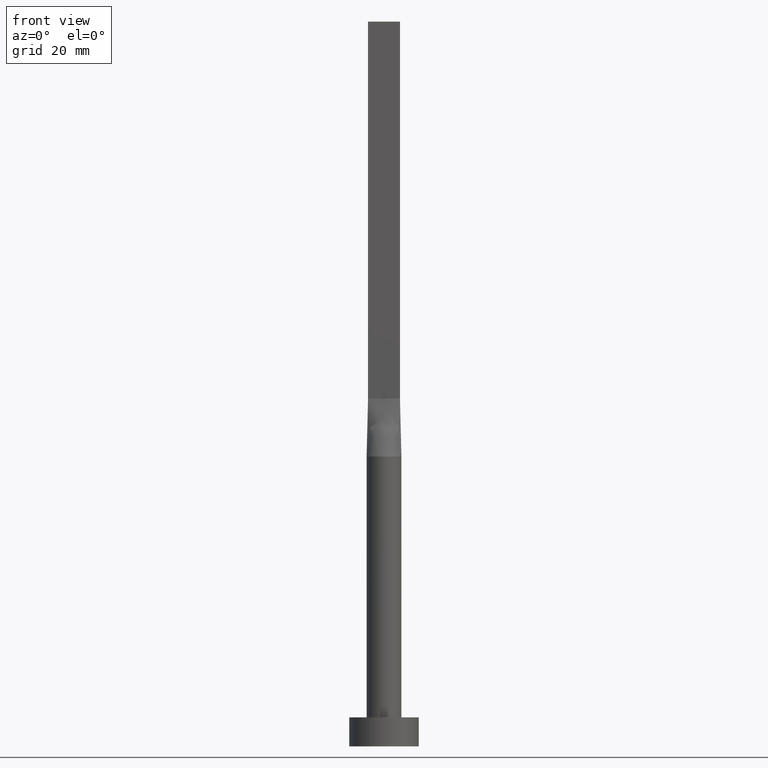
[diagram: clean part render]
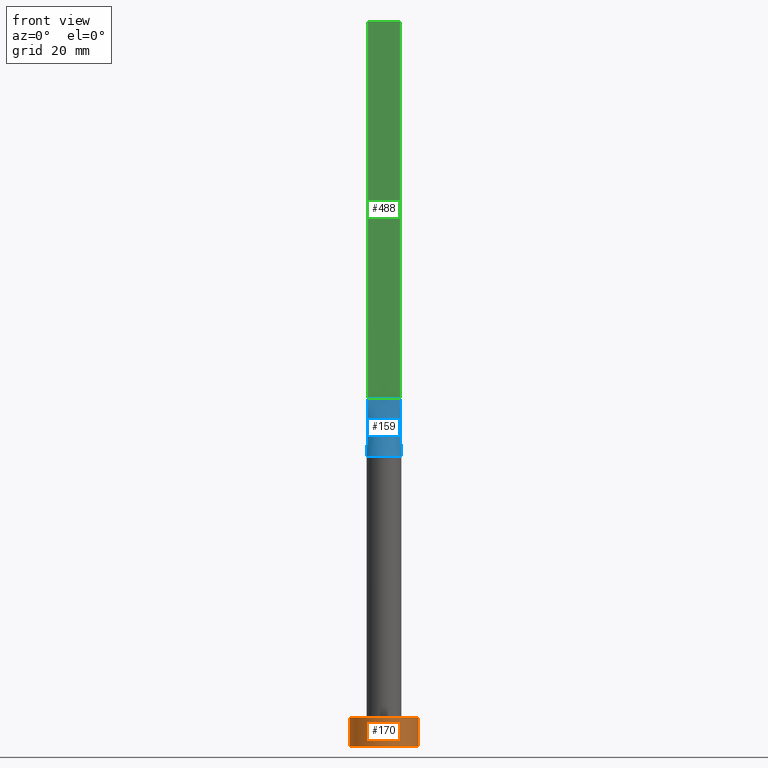
[diagram: same view with three faces highlighted in distinct colors, each labeled with its STEP entity id]
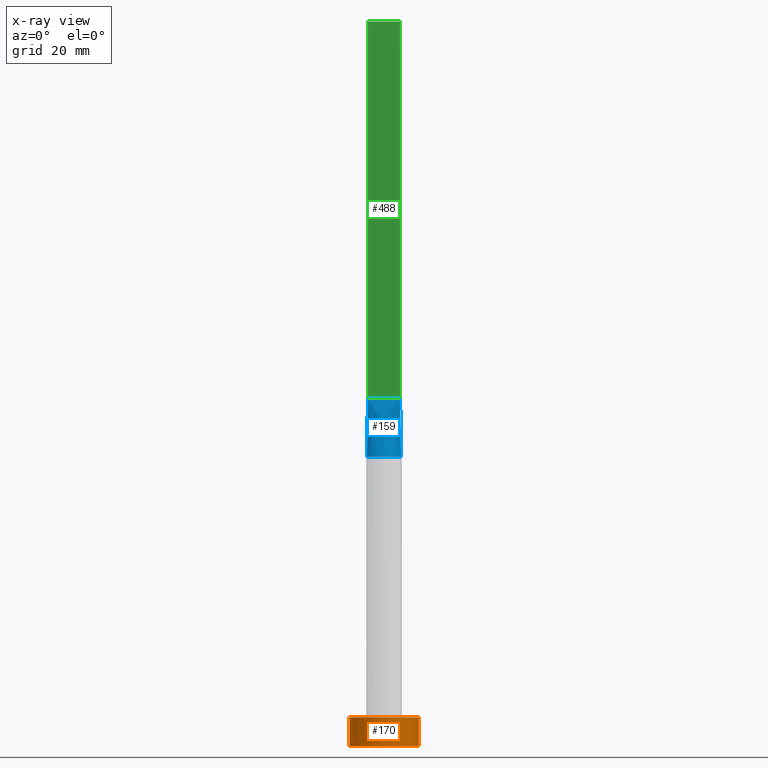
[diagram: x-ray of the same camera — body ghosted, the three highlighted faces saturated]
A machine part, front view with three faces highlighted in distinct colors.
The next image is the same camera in x-ray (body ghosted, the three faces saturated) — at least one of them is partly hidden behind the body in this view.
Their STEP definitions:

[orange] entity #170 — the highlighted cylindrical surface (edge-blend (fillet) strip) has radius 6 mm, axis along (-0, -0, -1).
#40 = FACE_OUTER_BOUND ( 'NONE', #399, .T. ) ;
#64 = VECTOR ( 'NONE', #215, 1000.000000000000000 ) ;
#75 = DIRECTION ( 'NONE',  ( -1.000000000000000000, 0.000000000000000000, 0.000000000000000000 ) ) ;
#98 = VERTEX_POINT ( 'NONE', #238 ) ;
#113 = AXIS2_PLACEMENT_3D ( 'NONE', #393, #482, #119 ) ;
#116 = CARTESIAN_POINT ( 'NONE',  ( 0.000000000000000000, 0.000000000000000000, 5.000000000000000000 ) ) ;
#119 = DIRECTION ( 'NONE',  ( 1.000000000000000000, 0.000000000000000000, 0.000000000000000000 ) ) ;
#126 = VERTEX_POINT ( 'NONE', #289 ) ;
#163 = CARTESIAN_POINT ( 'NONE',  ( 6.000000000000000888, 7.347880794884120722E-16, 5.000000000000000000 ) ) ;
#167 = CARTESIAN_POINT ( 'NONE',  ( 0.000000000000000000, 0.000000000000000000, 5.000000000000000000 ) ) ;
#169 = LINE ( 'NONE', #163, #64 ) ;
#170 = ADVANCED_FACE ( 'NONE', ( #40 ), #213, .T. ) ;
#172 = ORIENTED_EDGE ( 'NONE', *, *, #477, .F. ) ;
#178 = VECTOR ( 'NONE', #442, 1000.000000000000000 ) ;
#180 = ORIENTED_EDGE ( 'NONE', *, *, #573, .F. ) ;
#205 = VERTEX_POINT ( 'NONE', #285 ) ;
#213 = CYLINDRICAL_SURFACE ( 'NONE', #318, 6.000000000000000888 ) ;
#215 = DIRECTION ( 'NONE',  ( -0.000000000000000000, -0.000000000000000000, -1.000000000000000000 ) ) ;
#238 = CARTESIAN_POINT ( 'NONE',  ( 6.000000000000000888, 7.347880794884120722E-16, 5.000000000000000000 ) ) ;
#247 = DIRECTION ( 'NONE',  ( -0.000000000000000000, -0.000000000000000000, -1.000000000000000000 ) ) ;
#248 = DIRECTION ( 'NONE',  ( 0.000000000000000000, 0.000000000000000000, 1.000000000000000000 ) ) ;
#274 = AXIS2_PLACEMENT_3D ( 'NONE', #116, #248, #284 ) ;
#284 = DIRECTION ( 'NONE',  ( 1.000000000000000000, 0.000000000000000000, 0.000000000000000000 ) ) ;
#285 = CARTESIAN_POINT ( 'NONE',  ( -6.000000000000000888, 0.000000000000000000, 5.000000000000000000 ) ) ;
#289 = CARTESIAN_POINT ( 'NONE',  ( -6.000000000000000888, 0.000000000000000000, 0.000000000000000000 ) ) ;
#292 = CARTESIAN_POINT ( 'NONE',  ( -6.000000000000000888, 0.000000000000000000, 5.000000000000000000 ) ) ;
#318 = AXIS2_PLACEMENT_3D ( 'NONE', #167, #247, #75 ) ;
#350 = CIRCLE ( 'NONE', #274, 6.000000000000000888 ) ;
#390 = ORIENTED_EDGE ( 'NONE', *, *, #514, .T. ) ;
#393 = CARTESIAN_POINT ( 'NONE',  ( 0.000000000000000000, 0.000000000000000000, 0.000000000000000000 ) ) ;
#399 = EDGE_LOOP ( 'NONE', ( #180, #172, #521, #390 ) ) ;
#406 = CARTESIAN_POINT ( 'NONE',  ( 6.000000000000000888, 7.347880794884120722E-16, 0.000000000000000000 ) ) ;
#430 = VERTEX_POINT ( 'NONE', #406 ) ;
#442 = DIRECTION ( 'NONE',  ( -0.000000000000000000, -0.000000000000000000, -1.000000000000000000 ) ) ;
#477 = EDGE_CURVE ( 'NONE', #205, #98, #350, .T. ) ;
#481 = CIRCLE ( 'NONE', #113, 6.000000000000000888 ) ;
#482 = DIRECTION ( 'NONE',  ( 0.000000000000000000, 0.000000000000000000, 1.000000000000000000 ) ) ;
#514 = EDGE_CURVE ( 'NONE', #126, #430, #481, .T. ) ;
#521 = ORIENTED_EDGE ( 'NONE', *, *, #533, .T. ) ;
#528 = LINE ( 'NONE', #292, #178 ) ;
#533 = EDGE_CURVE ( 'NONE', #205, #126, #528, .T. ) ;
#573 = EDGE_CURVE ( 'NONE', #98, #430, #169, .T. ) ;

[blue] entity #159 — the highlighted face is a freeform B-spline surface patch.
#2 = CARTESIAN_POINT ( 'NONE',  ( -2.750000000000000000, -0.4999999999999994449, 60.00000000000000000 ) ) ;
#5 = EDGE_CURVE ( 'NONE', #502, #484, #500, .T. ) ;
#7 = CARTESIAN_POINT ( 'NONE',  ( 2.951896064709005785, -0.5367080392066733152, 49.99999999999999289 ) ) ;
#28 = CARTESIAN_POINT ( 'NONE',  ( -1.833333333333335702, -0.4999999999999995559, 60.00000000000000000 ) ) ;
#73 = DIRECTION ( 'NONE',  ( -0.02015674154923149941, -0.003664862099860237768, -0.9997901152521495582 ) ) ;
#79 = CARTESIAN_POINT ( 'NONE',  ( 2.951609730299722401, -0.5366563145999492246, 49.99999999999999289 ) ) ;
#83 = CARTESIAN_POINT ( 'NONE',  ( -2.291666666666667851, -0.4999999999999994449, 60.00000000000000000 ) ) ;
#84 = CARTESIAN_POINT ( 'NONE',  ( 2.907609730299723250, -0.7786563145999499946, 50.00000000000000000 ) ) ;
#89 = LINE ( 'NONE', #259, #453 ) ;
#95 = CARTESIAN_POINT ( 'NONE',  ( -2.850804865149861644, -0.5183281572999741682, 54.99999999999999289 ) ) ;
#115 = CARTESIAN_POINT ( 'NONE',  ( -0.9166666666666704044, -0.4999999999999995559, 60.00000000000000000 ) ) ;
#121 = CARTESIAN_POINT ( 'NONE',  ( 0.2291666666666624941, -0.4999999999999995559, 60.00000000000000000 ) ) ;
#122 = ORIENTED_EDGE ( 'NONE', *, *, #544, .F. ) ;
#128 = CARTESIAN_POINT ( 'NONE',  ( 2.750000000000000000, -0.4999999999999997780, 60.00000000000000000 ) ) ;
#136 = VERTEX_POINT ( 'NONE', #433 ) ;
#154 = CARTESIAN_POINT ( 'NONE',  ( 2.567367750129864401, -1.580669302822276023, 50.00000000000001421 ) ) ;
#157 = CARTESIAN_POINT ( 'NONE',  ( 0.000000000000000000, 0.000000000000000000, 49.99999999999999289 ) ) ;
#159 = ADVANCED_FACE ( 'NONE', ( #480 ), #472, .T. ) ;
#161 = CARTESIAN_POINT ( 'NONE',  ( -0.8331239790496242081, -2.909606296598777231, 49.99999999999998579 ) ) ;
#164 = CARTESIAN_POINT ( 'NONE',  ( 1.566158656300001395, -2.589797565249319256, 49.99999999999998579 ) ) ;
#173 = CARTESIAN_POINT ( 'NONE',  ( -2.750000000000000000, -0.4999999999999994449, 60.00000000000000000 ) ) ;
#201 = CARTESIAN_POINT ( 'NONE',  ( -1.145833333333336812, -0.4999999999999995559, 60.00000000000000000 ) ) ;
#203 = CARTESIAN_POINT ( 'NONE',  ( 1.833333333333330817, -0.4999999999999997780, 60.00000000000000000 ) ) ;
#208 = CARTESIAN_POINT ( 'NONE',  ( 1.882426928433513114, -2.362790634184936511, 50.00000000000000000 ) ) ;
#211 = CARTESIAN_POINT ( 'NONE',  ( -2.750000000000000000, -0.4999999999999994449, 60.00000000000000000 ) ) ;
#224 = ORIENTED_EDGE ( 'NONE', *, *, #427, .T. ) ;
#229 = VERTEX_POINT ( 'NONE', #7 ) ;
#233 = DIRECTION ( 'NONE',  ( 0.000000000000000000, 0.000000000000000000, 1.000000000000000000 ) ) ;
#240 = EDGE_CURVE ( 'NONE', #229, #136, #89, .T. ) ;
#243 = AXIS2_PLACEMENT_3D ( 'NONE', #157, #233, #371 ) ;
#252 = CARTESIAN_POINT ( 'NONE',  ( -2.907609730299723250, -0.7786563145999485513, 49.99999999999999289 ) ) ;
#254 = CARTESIAN_POINT ( 'NONE',  ( 2.829409566978765334, -1.041313647073049742, 50.00000000000002132 ) ) ;
#259 = CARTESIAN_POINT ( 'NONE',  ( 2.850804865149861200, -0.5183281572999745013, 54.99999999999999289 ) ) ;
#260 = ORIENTED_EDGE ( 'NONE', *, *, #240, .T. ) ;
#268 = ORIENTED_EDGE ( 'NONE', *, *, #5, .T. ) ;
#294 = CARTESIAN_POINT ( 'NONE',  ( 0.4172881767044969714, -3.000000000000000444, 49.99999999999998579 ) ) ;
#296 = CARTESIAN_POINT ( 'NONE',  ( 0.9166666666666628549, -0.4999999999999995559, 60.00000000000000000 ) ) ;
#332 = CARTESIAN_POINT ( 'NONE',  ( -1.882426928433514224, -2.362790634184934291, 49.99999999999998579 ) ) ;
#335 = CARTESIAN_POINT ( 'NONE',  ( 2.291666666666664742, -0.4999999999999997780, 60.00000000000000000 ) ) ;
#338 = CARTESIAN_POINT ( 'NONE',  ( 1.604166666666663854, -0.4999999999999997780, 60.00000000000000000 ) ) ;
#342 = CARTESIAN_POINT ( 'NONE',  ( -2.382399439808189356, -1.857547746650220599, 50.00000000000000000 ) ) ;
#371 = DIRECTION ( 'NONE',  ( 1.000000000000000000, 0.000000000000000000, 0.000000000000000000 ) ) ;
#374 = CARTESIAN_POINT ( 'NONE',  ( -1.604166666666669627, -0.4999999999999995559, 60.00000000000000000 ) ) ;
#377 = CARTESIAN_POINT ( 'NONE',  ( 2.382399439808186692, -1.857547746650222154, 49.99999999999999289 ) ) ;
#384 = CARTESIAN_POINT ( 'NONE',  ( -2.567367750129864845, -1.580669302822274691, 49.99999999999999289 ) ) ;
#388 = LINE ( 'NONE', #2, #519 ) ;
#420 = CARTESIAN_POINT ( 'NONE',  ( -2.829409566978767110, -1.041313647073048854, 50.00000000000002132 ) ) ;
#427 = EDGE_CURVE ( 'NONE', #484, #229, #503, .T. ) ;
#433 = CARTESIAN_POINT ( 'NONE',  ( 2.750000000000000000, -0.4999999999999997780, 60.00000000000000000 ) ) ;
#436 = CARTESIAN_POINT ( 'NONE',  ( 2.520833333333332593, -0.4999999999999997780, 60.00000000000000000 ) ) ;
#443 = DIRECTION ( 'NONE',  ( -0.02015674154923146125, 0.003664862099860249044, 0.9997901152521495582 ) ) ;
#453 = VECTOR ( 'NONE', #443, 1000.000000000000114 ) ;
#472 = B_SPLINE_SURFACE_WITH_KNOTS ( 'NONE', 3, 1, ( 
 ( #486, #211 ),
 ( #252, #534 ),
 ( #420, #83 ),
 ( #384, #28 ),
 ( #342, #374 ),
 ( #332, #201 ),
 ( #530, #115 ),
 ( #161, #574 ),
 ( #579, #520 ),
 ( #294, #121 ),
 ( #474, #567 ),
 ( #164, #296 ),
 ( #208, #564 ),
 ( #377, #338 ),
 ( #154, #203 ),
 ( #254, #335 ),
 ( #84, #436 ),
 ( #79, #128 ) ),
 .UNSPECIFIED., .F., .F., .F.,
 ( 4, 2, 2, 2, 2, 2, 2, 2, 4 ),
 ( 2, 2 ),
 ( 0.000000000000000000, 0.1250000000000000000, 0.2500000000000000000, 0.3750000000000000000, 0.5000000000000000000, 0.6250000000000000000, 0.7500000000000000000, 0.8750000000000000000, 1.000000000000000000 ),
 ( 0.000000000000000000, 1.000000000000000000 ),
 .UNSPECIFIED. ) ;
#474 = CARTESIAN_POINT ( 'NONE',  ( 0.8331239790496235420, -2.909606296598777231, 50.00000000000000000 ) ) ;
#476 = CARTESIAN_POINT ( 'NONE',  ( -2.951885853416577277, -0.5367063210726344957, 49.99999999999999289 ) ) ;
#480 = FACE_OUTER_BOUND ( 'NONE', #535, .T. ) ;
#484 = VERTEX_POINT ( 'NONE', #476 ) ;
#486 = CARTESIAN_POINT ( 'NONE',  ( -2.951609730299722845, -0.5366563145999487805, 49.99999999999999289 ) ) ;
#489 = VECTOR ( 'NONE', #73, 1000.000000000000114 ) ;
#500 = LINE ( 'NONE', #95, #489 ) ;
#502 = VERTEX_POINT ( 'NONE', #173 ) ;
#503 = CIRCLE ( 'NONE', #243, 3.000000000000000444 ) ;
#519 = VECTOR ( 'NONE', #536, 1000.000000000000000 ) ;
#520 = CARTESIAN_POINT ( 'NONE',  ( -0.2291666666666708763, -0.4999999999999995559, 60.00000000000000000 ) ) ;
#530 = CARTESIAN_POINT ( 'NONE',  ( -1.566158656300002727, -2.589797565249318811, 50.00000000000000000 ) ) ;
#534 = CARTESIAN_POINT ( 'NONE',  ( -2.520833333333333925, -0.4999999999999994449, 60.00000000000000000 ) ) ;
#535 = EDGE_LOOP ( 'NONE', ( #224, #260, #122, #268 ) ) ;
#536 = DIRECTION ( 'NONE',  ( 1.000000000000000000, -5.913830031739115543E-17, 0.000000000000000000 ) ) ;
#544 = EDGE_CURVE ( 'NONE', #502, #136, #388, .T. ) ;
#564 = CARTESIAN_POINT ( 'NONE',  ( 1.145833333333329929, -0.4999999999999996669, 60.00000000000000000 ) ) ;
#567 = CARTESIAN_POINT ( 'NONE',  ( 0.4583333333333292625, -0.4999999999999995559, 60.00000000000000000 ) ) ;
#574 = CARTESIAN_POINT ( 'NONE',  ( -0.4583333333333374782, -0.4999999999999995559, 60.00000000000000000 ) ) ;
#579 = CARTESIAN_POINT ( 'NONE',  ( -0.4172881767044983592, -2.999999999999999556, 50.00000000000000000 ) ) ;

[green] entity #488 — the highlighted planar face has unit normal (0, 1, -0).
#2 = CARTESIAN_POINT ( 'NONE',  ( -2.750000000000000000, -0.4999999999999994449, 60.00000000000000000 ) ) ;
#43 = DIRECTION ( 'NONE',  ( -1.000000000000000000, 5.913830031739115543E-17, 0.000000000000000000 ) ) ;
#46 = CARTESIAN_POINT ( 'NONE',  ( 2.750000000000000000, -0.4999999999999997780, 125.0000000000000000 ) ) ;
#48 = ORIENTED_EDGE ( 'NONE', *, *, #276, .T. ) ;
#59 = EDGE_CURVE ( 'NONE', #551, #136, #464, .T. ) ;
#77 = FACE_OUTER_BOUND ( 'NONE', #525, .T. ) ;
#78 = VECTOR ( 'NONE', #273, 1000.000000000000000 ) ;
#80 = CARTESIAN_POINT ( 'NONE',  ( -2.750000000000000000, -0.4999999999999994449, 125.0000000000000000 ) ) ;
#81 = VECTOR ( 'NONE', #523, 1000.000000000000000 ) ;
#101 = VERTEX_POINT ( 'NONE', #412 ) ;
#136 = VERTEX_POINT ( 'NONE', #433 ) ;
#173 = CARTESIAN_POINT ( 'NONE',  ( -2.750000000000000000, -0.4999999999999994449, 60.00000000000000000 ) ) ;
#175 = CARTESIAN_POINT ( 'NONE',  ( -2.750000000000000000, -0.4999999999999994449, 125.0000000000000000 ) ) ;
#199 = CARTESIAN_POINT ( 'NONE',  ( 2.750000000000000000, -0.4999999999999997780, 125.0000000000000000 ) ) ;
#270 = ORIENTED_EDGE ( 'NONE', *, *, #59, .F. ) ;
#273 = DIRECTION ( 'NONE',  ( -0.000000000000000000, -0.000000000000000000, -1.000000000000000000 ) ) ;
#276 = EDGE_CURVE ( 'NONE', #101, #502, #505, .T. ) ;
#308 = ORIENTED_EDGE ( 'NONE', *, *, #544, .T. ) ;
#329 = AXIS2_PLACEMENT_3D ( 'NONE', #80, #385, #43 ) ;
#331 = CARTESIAN_POINT ( 'NONE',  ( -2.750000000000000000, -0.4999999999999994449, 125.0000000000000000 ) ) ;
#339 = VECTOR ( 'NONE', #541, 1000.000000000000000 ) ;
#385 = DIRECTION ( 'NONE',  ( 5.913830031739115543E-17, 1.000000000000000000, -0.000000000000000000 ) ) ;
#388 = LINE ( 'NONE', #2, #519 ) ;
#412 = CARTESIAN_POINT ( 'NONE',  ( -2.750000000000000000, -0.4999999999999994449, 125.0000000000000000 ) ) ;
#433 = CARTESIAN_POINT ( 'NONE',  ( 2.750000000000000000, -0.4999999999999997780, 60.00000000000000000 ) ) ;
#447 = ORIENTED_EDGE ( 'NONE', *, *, #465, .F. ) ;
#464 = LINE ( 'NONE', #199, #78 ) ;
#465 = EDGE_CURVE ( 'NONE', #101, #551, #565, .T. ) ;
#488 = ADVANCED_FACE ( 'NONE', ( #77 ), #526, .F. ) ;
#502 = VERTEX_POINT ( 'NONE', #173 ) ;
#505 = LINE ( 'NONE', #175, #339 ) ;
#519 = VECTOR ( 'NONE', #536, 1000.000000000000000 ) ;
#523 = DIRECTION ( 'NONE',  ( 1.000000000000000000, -5.913830031739115543E-17, 0.000000000000000000 ) ) ;
#525 = EDGE_LOOP ( 'NONE', ( #308, #270, #447, #48 ) ) ;
#526 = PLANE ( 'NONE',  #329 ) ;
#536 = DIRECTION ( 'NONE',  ( 1.000000000000000000, -5.913830031739115543E-17, 0.000000000000000000 ) ) ;
#541 = DIRECTION ( 'NONE',  ( -0.000000000000000000, -0.000000000000000000, -1.000000000000000000 ) ) ;
#544 = EDGE_CURVE ( 'NONE', #502, #136, #388, .T. ) ;
#551 = VERTEX_POINT ( 'NONE', #46 ) ;
#565 = LINE ( 'NONE', #331, #81 ) ;